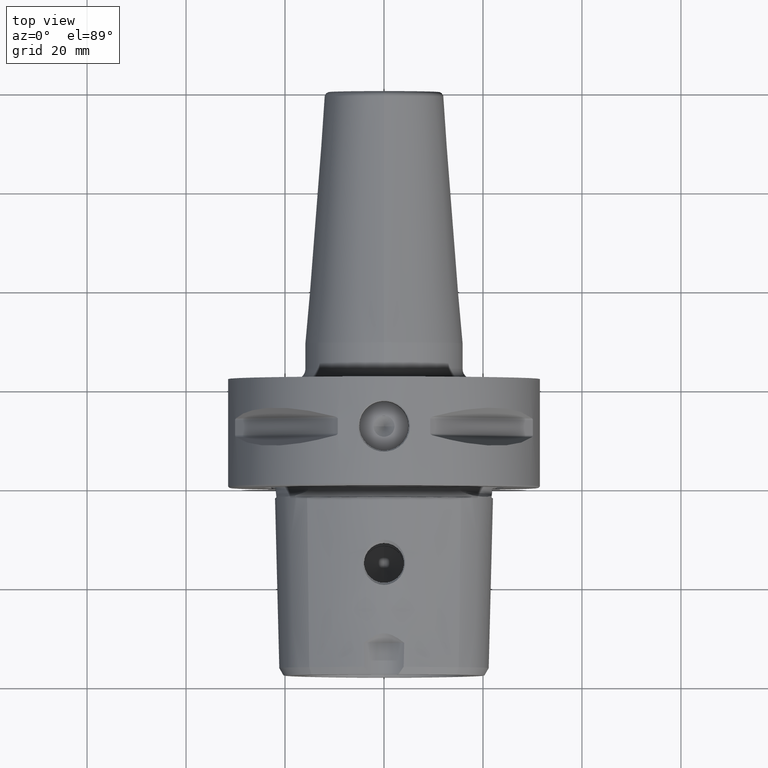
[diagram: clean part render]
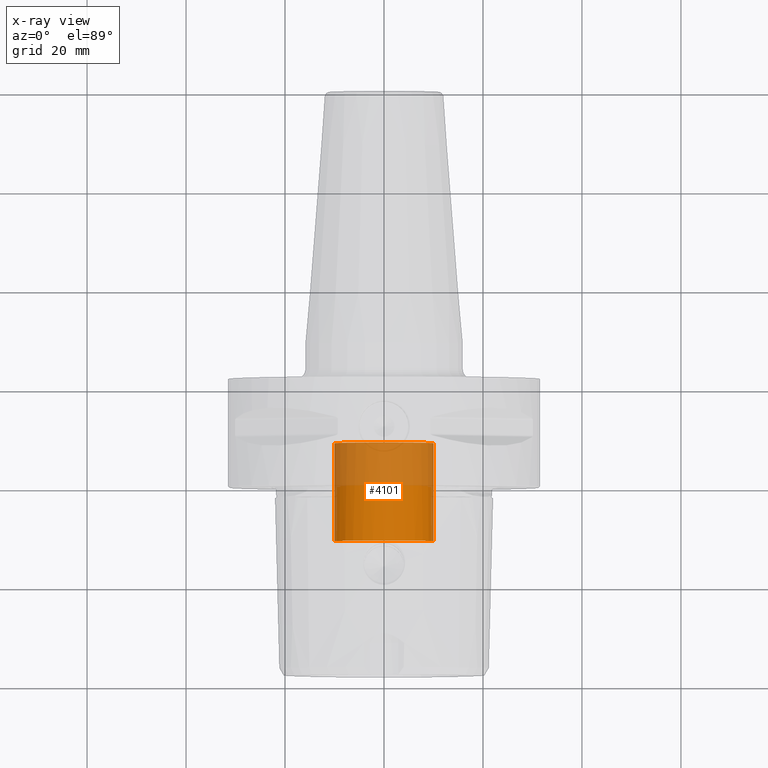
[diagram: x-ray — body ghosted, one internal face saturated and labeled with its STEP entity id]
A machine part, top view, then the same camera in x-ray: the body is ghosted and one INTERNAL B-rep face — a face not visible from any outside direction — is saturated and labeled: STEP entity #4101.
In plain terms, the highlighted cylindrical surface (partial cylindrical patch) has radius 10 mm, axis along (0, 1, 0).
Its self-contained STEP definition (entity closure, byte-faithful):
#4003=CARTESIAN_POINT('',(0.E0,9.E0,0.E0));
#4004=DIRECTION('',(0.E0,1.E0,0.E0));
#4005=DIRECTION('',(-1.E0,0.E0,0.E0));
#4006=AXIS2_PLACEMENT_3D('',#4003,#4004,#4005);
#4023=CARTESIAN_POINT('',(0.E0,-1.080816825301E1,0.E0));
#4024=DIRECTION('',(0.E0,-1.E0,0.E0));
#4025=DIRECTION('',(0.E0,0.E0,1.E0));
#4026=AXIS2_PLACEMENT_3D('',#4023,#4024,#4025);
#4028=DIRECTION('',(0.E0,1.E0,0.E0));
#4029=VECTOR('',#4028,1.980816825301E1);
#4030=CARTESIAN_POINT('',(-1.E1,-1.080816825301E1,0.E0));
#4031=LINE('',#4030,#4029);
#4032=CARTESIAN_POINT('',(0.E0,-1.080816825301E1,0.E0));
#4033=DIRECTION('',(0.E0,-1.E0,0.E0));
#4034=DIRECTION('',(1.E0,0.E0,0.E0));
#4035=AXIS2_PLACEMENT_3D('',#4032,#4033,#4034);
#4047=DIRECTION('',(0.E0,1.E0,0.E0));
#4048=VECTOR('',#4047,1.980816825301E1);
#4049=CARTESIAN_POINT('',(1.E1,-1.080816825301E1,0.E0));
#4050=LINE('',#4049,#4048);
#4051=CARTESIAN_POINT('',(-1.E1,9.E0,0.E0));
#4052=CARTESIAN_POINT('',(1.E1,9.E0,0.E0));
#4053=VERTEX_POINT('',#4051);
#4054=VERTEX_POINT('',#4052);
#4055=CARTESIAN_POINT('',(-1.E1,-1.080816825301E1,0.E0));
#4056=CARTESIAN_POINT('',(0.E0,-1.080816825301E1,1.E1));
#4057=VERTEX_POINT('',#4055);
#4058=VERTEX_POINT('',#4056);
#4059=CARTESIAN_POINT('',(1.E1,-1.080816825301E1,0.E0));
#4060=VERTEX_POINT('',#4059);
#4085=CARTESIAN_POINT('',(0.E0,-4.4E1,0.E0));
#4086=DIRECTION('',(0.E0,1.E0,0.E0));
#4087=DIRECTION('',(-1.E0,0.E0,0.E0));
#4088=AXIS2_PLACEMENT_3D('',#4085,#4086,#4087);
#4089=CYLINDRICAL_SURFACE('',#4088,1.E1);
#4091=ORIENTED_EDGE('',*,*,#4090,.T.);
#4093=ORIENTED_EDGE('',*,*,#4092,.T.);
#4094=ORIENTED_EDGE('',*,*,#4072,.T.);
#4096=ORIENTED_EDGE('',*,*,#4095,.F.);
#4098=ORIENTED_EDGE('',*,*,#4097,.T.);
#4099=EDGE_LOOP('',(#4091,#4093,#4094,#4096,#4098));
#4100=FACE_OUTER_BOUND('',#4099,.F.);
#4101=ADVANCED_FACE('',(#4100),#4089,.T.);
#4007=CIRCLE('',#4006,1.E1);
#4027=CIRCLE('',#4026,1.E1);
#4036=CIRCLE('',#4035,1.E1);
#4072=EDGE_CURVE('',#4053,#4054,#4007,.T.);
#4090=EDGE_CURVE('',#4058,#4057,#4027,.T.);
#4092=EDGE_CURVE('',#4057,#4053,#4031,.T.);
#4095=EDGE_CURVE('',#4060,#4054,#4050,.T.);
#4097=EDGE_CURVE('',#4060,#4058,#4036,.T.);